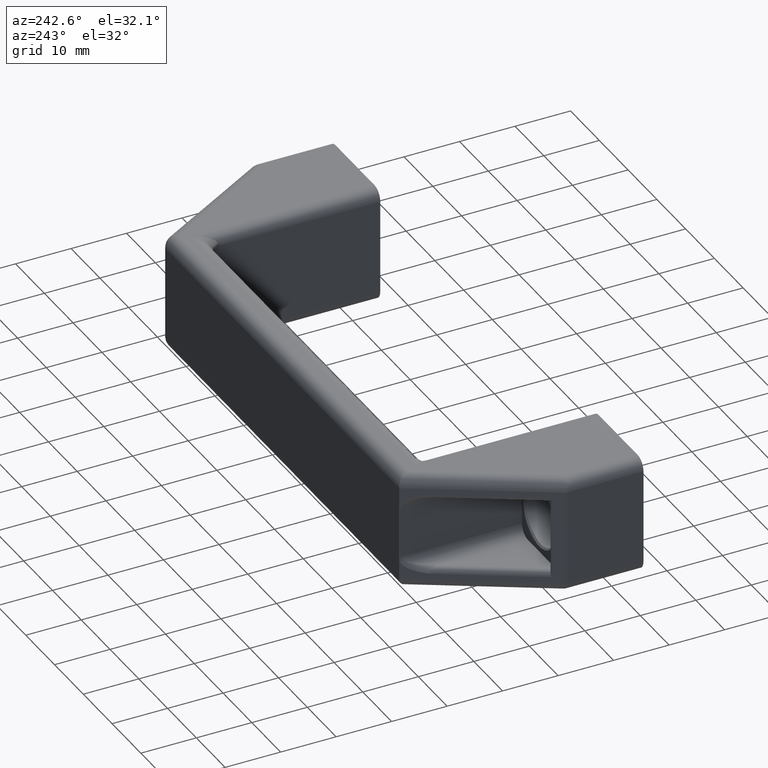
[diagram: clean part render]
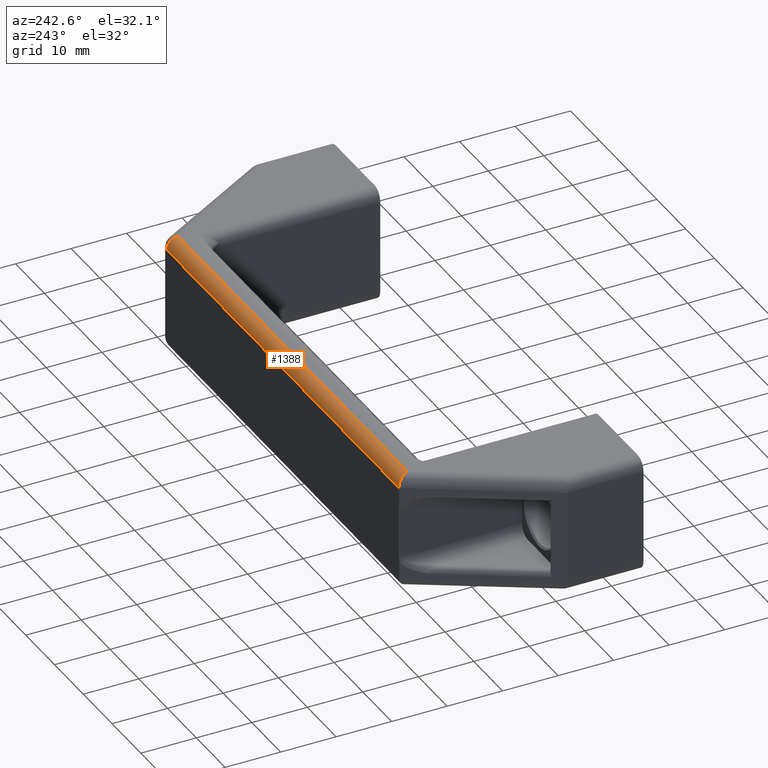
[diagram: same view with one face highlighted and labeled with its STEP entity id]
A machine part, auxiliary view. The second image highlights one B-rep face of the part: STEP entity #1388.
In plain terms, the highlighted cylindrical surface (edge-blend (fillet) strip) has radius 2 mm, axis along (1, 0, 0).
Its self-contained STEP definition (entity closure, byte-faithful):
#85=ELLIPSE('',#1548,2.24993686053924,2.);
#132=LINE('',#2570,#221);
#167=LINE('',#2705,#256);
#221=VECTOR('',#1776,79.7096920510975);
#256=VECTOR('',#1923,80.7403306281037);
#298=CYLINDRICAL_SURFACE('',#1547,2.);
#375=FACE_OUTER_BOUND('',#478,.T.);
#478=EDGE_LOOP('',(#1201,#1202,#1203,#1204));
#581=CIRCLE('',#1546,2.);
#661=VERTEX_POINT('',#2567);
#662=VERTEX_POINT('',#2569);
#689=VERTEX_POINT('',#2666);
#692=VERTEX_POINT('',#2704);
#808=EDGE_CURVE('',#662,#661,#132,.T.);
#869=EDGE_CURVE('',#689,#661,#581,.T.);
#870=EDGE_CURVE('',#689,#692,#167,.T.);
#871=EDGE_CURVE('',#662,#692,#85,.T.);
#1201=ORIENTED_EDGE('',*,*,#869,.F.);
#1202=ORIENTED_EDGE('',*,*,#870,.T.);
#1203=ORIENTED_EDGE('',*,*,#871,.F.);
#1204=ORIENTED_EDGE('',*,*,#808,.T.);
#1388=ADVANCED_FACE('',(#375),#298,.T.);
#1546=AXIS2_PLACEMENT_3D('',#2702,#1919,#1920);
#1547=AXIS2_PLACEMENT_3D('',#2703,#1921,#1922);
#1548=AXIS2_PLACEMENT_3D('',#2706,#1924,#1925);
#1776=DIRECTION('',(1.,0.,0.));
#1919=DIRECTION('center_axis',(1.,0.,0.));
#1920=DIRECTION('ref_axis',(0.,0.707106781186548,0.707106781186548));
#1921=DIRECTION('center_axis',(1.,0.,0.));
#1922=DIRECTION('ref_axis',(0.,0.707106781186548,0.707106781186548));
#1923=DIRECTION('',(-1.,0.,0.));
#1924=DIRECTION('center_axis',(-0.888913833573383,-0.458074444257559,-9.86892604940985E-16));
#1925=DIRECTION('ref_axis',(-0.458074444257559,0.888913833573383,-9.86892604940985E-16));
#2567=CARTESIAN_POINT('',(63.2570809246474,9.82495356909812,21.));
#2569=CARTESIAN_POINT('',(-16.4526111264501,9.82495356909813,21.));
#2570=CARTESIAN_POINT('',(2.90223489909865,9.82495356909812,21.));
#2666=CARTESIAN_POINT('',(63.2570809246474,11.8249535690981,19.));
#2702=CARTESIAN_POINT('Origin',(63.2570809246474,9.82495356909812,19.));
#2703=CARTESIAN_POINT('Origin',(2.90223489909865,9.82495356909812,19.));
#2704=CARTESIAN_POINT('',(-17.4832497034562,11.8249535690981,19.));
#2705=CARTESIAN_POINT('',(2.90223489909865,11.8249535690981,19.));
#2706=CARTESIAN_POINT('Origin',(-16.4526111264501,9.82495356909812,19.));